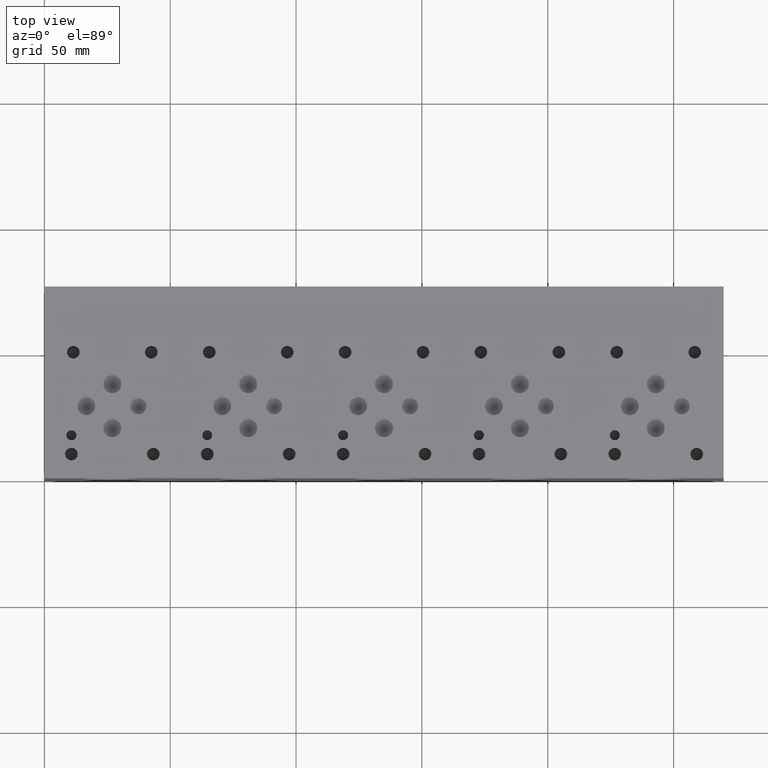
[diagram: clean part render]
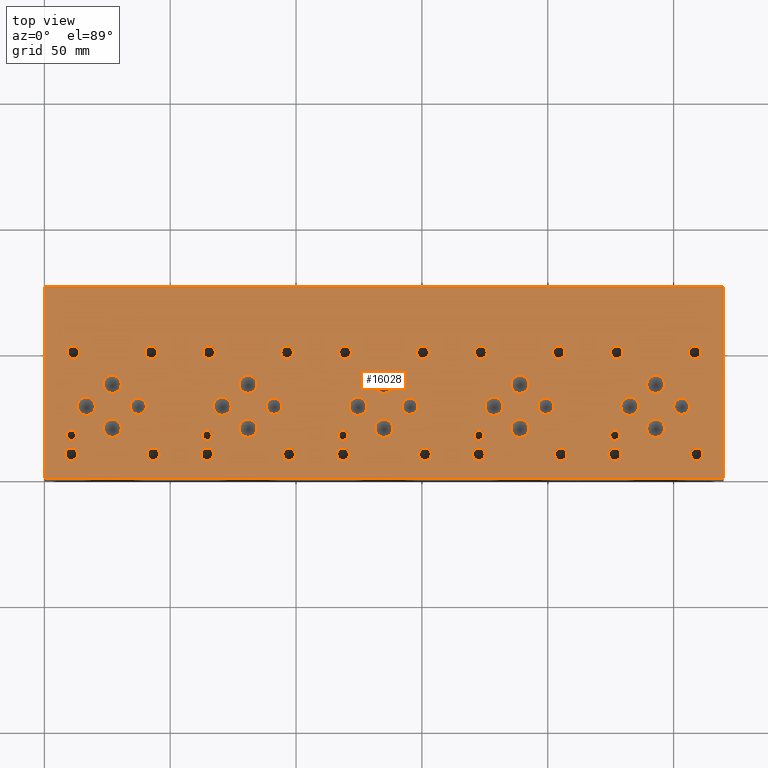
[diagram: same view with one face highlighted and labeled with its STEP entity id]
A machine part, top view. The second image highlights one B-rep face of the part: STEP entity #16028.
In plain terms, the highlighted planar face has unit normal (0, 0, 1).
Its self-contained STEP definition (entity closure, byte-faithful):
#464=CIRCLE('',#16793,1.9812);
#465=CIRCLE('',#16794,1.9812);
#468=CIRCLE('',#16799,1.9812);
#469=CIRCLE('',#16800,1.9812);
#472=CIRCLE('',#16805,1.9812);
#473=CIRCLE('',#16806,1.9812);
#476=CIRCLE('',#16811,1.9812);
#477=CIRCLE('',#16812,1.9812);
#483=CIRCLE('',#16821,2.5019);
#484=CIRCLE('',#16822,2.5019);
#490=CIRCLE('',#16832,2.5019);
#491=CIRCLE('',#16833,2.5019);
#497=CIRCLE('',#16843,2.5019);
#498=CIRCLE('',#16844,2.5019);
#504=CIRCLE('',#16854,2.5019);
#505=CIRCLE('',#16855,2.5019);
#511=CIRCLE('',#16865,2.5019);
#512=CIRCLE('',#16866,2.5019);
#518=CIRCLE('',#16876,2.5019);
#519=CIRCLE('',#16877,2.5019);
#525=CIRCLE('',#16887,2.5019);
#526=CIRCLE('',#16888,2.5019);
#532=CIRCLE('',#16898,2.5019);
#533=CIRCLE('',#16899,2.5019);
#539=CIRCLE('',#16909,2.5019);
#540=CIRCLE('',#16910,2.5019);
#546=CIRCLE('',#16920,2.5019);
#547=CIRCLE('',#16921,2.5019);
#553=CIRCLE('',#16931,2.5019);
#554=CIRCLE('',#16932,2.5019);
#560=CIRCLE('',#16942,2.5019);
#561=CIRCLE('',#16943,2.5019);
#567=CIRCLE('',#16953,2.5019);
#568=CIRCLE('',#16954,2.5019);
#574=CIRCLE('',#16964,2.5019);
#575=CIRCLE('',#16965,2.5019);
#581=CIRCLE('',#16975,2.5019);
#582=CIRCLE('',#16976,2.5019);
#588=CIRCLE('',#16986,2.5019);
#589=CIRCLE('',#16987,2.5019);
#592=CIRCLE('',#16993,3.175);
#593=CIRCLE('',#16994,3.175);
#596=CIRCLE('',#16999,3.175);
#597=CIRCLE('',#17000,3.175);
#600=CIRCLE('',#17005,3.175);
#601=CIRCLE('',#17006,3.175);
#604=CIRCLE('',#17011,3.175);
#605=CIRCLE('',#17012,3.175);
#608=CIRCLE('',#17017,3.175);
#609=CIRCLE('',#17018,3.175);
#612=CIRCLE('',#17023,3.5687);
#613=CIRCLE('',#17024,3.5687);
#616=CIRCLE('',#17029,3.5687);
#617=CIRCLE('',#17030,3.5687);
#620=CIRCLE('',#17035,3.5687);
#621=CIRCLE('',#17036,3.5687);
#624=CIRCLE('',#17041,3.5687);
#625=CIRCLE('',#17042,3.5687);
#628=CIRCLE('',#17047,3.5687);
#629=CIRCLE('',#17048,3.5687);
#632=CIRCLE('',#17053,3.5687);
#633=CIRCLE('',#17054,3.5687);
#636=CIRCLE('',#17059,3.5687);
#637=CIRCLE('',#17060,3.5687);
#640=CIRCLE('',#17065,3.5687);
#641=CIRCLE('',#17066,3.5687);
#644=CIRCLE('',#17071,3.5687);
#645=CIRCLE('',#17072,3.5687);
#648=CIRCLE('',#17077,3.5687);
#649=CIRCLE('',#17078,3.5687);
#652=CIRCLE('',#17083,3.5687);
#653=CIRCLE('',#17084,3.5687);
#656=CIRCLE('',#17089,3.5687);
#657=CIRCLE('',#17090,3.5687);
#660=CIRCLE('',#17095,3.5687);
#661=CIRCLE('',#17096,3.5687);
#664=CIRCLE('',#17101,3.5687);
#665=CIRCLE('',#17102,3.5687);
#668=CIRCLE('',#17107,3.5687);
#669=CIRCLE('',#17108,3.5687);
#672=CIRCLE('',#17113,1.9812);
#673=CIRCLE('',#17114,1.9812);
#679=CIRCLE('',#17123,2.5019);
#680=CIRCLE('',#17124,2.5019);
#686=CIRCLE('',#17134,2.5019);
#687=CIRCLE('',#17135,2.5019);
#693=CIRCLE('',#17145,2.5019);
#694=CIRCLE('',#17146,2.5019);
#700=CIRCLE('',#17156,2.5019);
#701=CIRCLE('',#17157,2.5019);
#831=FACE_BOUND('',#3097,.T.);
#832=FACE_BOUND('',#3098,.T.);
#833=FACE_BOUND('',#3099,.T.);
#834=FACE_BOUND('',#3100,.T.);
#835=FACE_BOUND('',#3101,.T.);
#836=FACE_BOUND('',#3102,.T.);
#837=FACE_BOUND('',#3103,.T.);
#838=FACE_BOUND('',#3104,.T.);
#839=FACE_BOUND('',#3105,.T.);
#840=FACE_BOUND('',#3106,.T.);
#841=FACE_BOUND('',#3107,.T.);
#842=FACE_BOUND('',#3108,.T.);
#843=FACE_BOUND('',#3109,.T.);
#844=FACE_BOUND('',#3110,.T.);
#845=FACE_BOUND('',#3111,.T.);
#846=FACE_BOUND('',#3112,.T.);
#847=FACE_BOUND('',#3113,.T.);
#848=FACE_BOUND('',#3114,.T.);
#849=FACE_BOUND('',#3115,.T.);
#850=FACE_BOUND('',#3116,.T.);
#851=FACE_BOUND('',#3117,.T.);
#852=FACE_BOUND('',#3118,.T.);
#853=FACE_BOUND('',#3119,.T.);
#854=FACE_BOUND('',#3120,.T.);
#855=FACE_BOUND('',#3121,.T.);
#856=FACE_BOUND('',#3122,.T.);
#857=FACE_BOUND('',#3123,.T.);
#858=FACE_BOUND('',#3124,.T.);
#859=FACE_BOUND('',#3125,.T.);
#860=FACE_BOUND('',#3126,.T.);
#861=FACE_BOUND('',#3127,.T.);
#862=FACE_BOUND('',#3128,.T.);
#863=FACE_BOUND('',#3129,.T.);
#864=FACE_BOUND('',#3130,.T.);
#865=FACE_BOUND('',#3131,.T.);
#866=FACE_BOUND('',#3132,.T.);
#867=FACE_BOUND('',#3133,.T.);
#868=FACE_BOUND('',#3134,.T.);
#869=FACE_BOUND('',#3135,.T.);
#870=FACE_BOUND('',#3136,.T.);
#871=FACE_BOUND('',#3137,.T.);
#872=FACE_BOUND('',#3138,.T.);
#873=FACE_BOUND('',#3139,.T.);
#874=FACE_BOUND('',#3140,.T.);
#875=FACE_BOUND('',#3141,.T.);
#1307=PLANE('',#17163);
#2137=FACE_OUTER_BOUND('',#3096,.T.);
#3096=EDGE_LOOP('',(#14371,#14372,#14373,#14374));
#3097=EDGE_LOOP('',(#14375,#14376));
#3098=EDGE_LOOP('',(#14377,#14378));
#3099=EDGE_LOOP('',(#14379,#14380));
#3100=EDGE_LOOP('',(#14381,#14382));
#3101=EDGE_LOOP('',(#14383,#14384));
#3102=EDGE_LOOP('',(#14385,#14386));
#3103=EDGE_LOOP('',(#14387,#14388));
#3104=EDGE_LOOP('',(#14389,#14390));
#3105=EDGE_LOOP('',(#14391,#14392));
#3106=EDGE_LOOP('',(#14393,#14394));
#3107=EDGE_LOOP('',(#14395,#14396));
#3108=EDGE_LOOP('',(#14397,#14398));
#3109=EDGE_LOOP('',(#14399,#14400));
#3110=EDGE_LOOP('',(#14401,#14402));
#3111=EDGE_LOOP('',(#14403,#14404));
#3112=EDGE_LOOP('',(#14405,#14406));
#3113=EDGE_LOOP('',(#14407,#14408));
#3114=EDGE_LOOP('',(#14409,#14410));
#3115=EDGE_LOOP('',(#14411,#14412));
#3116=EDGE_LOOP('',(#14413,#14414));
#3117=EDGE_LOOP('',(#14415,#14416));
#3118=EDGE_LOOP('',(#14417,#14418));
#3119=EDGE_LOOP('',(#14419,#14420));
#3120=EDGE_LOOP('',(#14421,#14422));
#3121=EDGE_LOOP('',(#14423,#14424));
#3122=EDGE_LOOP('',(#14425,#14426));
#3123=EDGE_LOOP('',(#14427,#14428));
#3124=EDGE_LOOP('',(#14429,#14430));
#3125=EDGE_LOOP('',(#14431,#14432));
#3126=EDGE_LOOP('',(#14433,#14434));
#3127=EDGE_LOOP('',(#14435,#14436));
#3128=EDGE_LOOP('',(#14437,#14438));
#3129=EDGE_LOOP('',(#14439,#14440));
#3130=EDGE_LOOP('',(#14441,#14442));
#3131=EDGE_LOOP('',(#14443,#14444));
#3132=EDGE_LOOP('',(#14445,#14446));
#3133=EDGE_LOOP('',(#14447,#14448));
#3134=EDGE_LOOP('',(#14449,#14450));
#3135=EDGE_LOOP('',(#14451,#14452));
#3136=EDGE_LOOP('',(#14453,#14454));
#3137=EDGE_LOOP('',(#14455,#14456));
#3138=EDGE_LOOP('',(#14457,#14458));
#3139=EDGE_LOOP('',(#14459,#14460));
#3140=EDGE_LOOP('',(#14461,#14462));
#3141=EDGE_LOOP('',(#14463,#14464));
#3177=LINE('',#20975,#4534);
#3237=LINE('',#21250,#4594);
#3529=LINE('',#23507,#4886);
#4499=LINE('',#27863,#5856);
#4534=VECTOR('',#17221,10.);
#4594=VECTOR('',#17335,10.);
#4886=VECTOR('',#17793,10.);
#5856=VECTOR('',#20757,10.);
#6273=VERTEX_POINT('',#20972);
#6274=VERTEX_POINT('',#20974);
#6333=VERTEX_POINT('',#21247);
#6334=VERTEX_POINT('',#21249);
#7524=VERTEX_POINT('',#27103);
#7525=VERTEX_POINT('',#27104);
#7529=VERTEX_POINT('',#27116);
#7530=VERTEX_POINT('',#27117);
#7534=VERTEX_POINT('',#27129);
#7535=VERTEX_POINT('',#27130);
#7539=VERTEX_POINT('',#27142);
#7540=VERTEX_POINT('',#27143);
#7547=VERTEX_POINT('',#27162);
#7548=VERTEX_POINT('',#27163);
#7555=VERTEX_POINT('',#27184);
#7556=VERTEX_POINT('',#27185);
#7563=VERTEX_POINT('',#27206);
#7564=VERTEX_POINT('',#27207);
#7571=VERTEX_POINT('',#27228);
#7572=VERTEX_POINT('',#27229);
#7579=VERTEX_POINT('',#27250);
#7580=VERTEX_POINT('',#27251);
#7587=VERTEX_POINT('',#27272);
#7588=VERTEX_POINT('',#27273);
#7595=VERTEX_POINT('',#27294);
#7596=VERTEX_POINT('',#27295);
#7603=VERTEX_POINT('',#27316);
#7604=VERTEX_POINT('',#27317);
#7611=VERTEX_POINT('',#27338);
#7612=VERTEX_POINT('',#27339);
#7619=VERTEX_POINT('',#27360);
#7620=VERTEX_POINT('',#27361);
#7627=VERTEX_POINT('',#27382);
#7628=VERTEX_POINT('',#27383);
#7635=VERTEX_POINT('',#27404);
#7636=VERTEX_POINT('',#27405);
#7643=VERTEX_POINT('',#27426);
#7644=VERTEX_POINT('',#27427);
#7651=VERTEX_POINT('',#27448);
#7652=VERTEX_POINT('',#27449);
#7659=VERTEX_POINT('',#27470);
#7660=VERTEX_POINT('',#27471);
#7667=VERTEX_POINT('',#27492);
#7668=VERTEX_POINT('',#27493);
#7672=VERTEX_POINT('',#27507);
#7673=VERTEX_POINT('',#27508);
#7677=VERTEX_POINT('',#27520);
#7678=VERTEX_POINT('',#27521);
#7682=VERTEX_POINT('',#27533);
#7683=VERTEX_POINT('',#27534);
#7687=VERTEX_POINT('',#27546);
#7688=VERTEX_POINT('',#27547);
#7692=VERTEX_POINT('',#27559);
#7693=VERTEX_POINT('',#27560);
#7697=VERTEX_POINT('',#27572);
#7698=VERTEX_POINT('',#27573);
#7702=VERTEX_POINT('',#27585);
#7703=VERTEX_POINT('',#27586);
#7707=VERTEX_POINT('',#27598);
#7708=VERTEX_POINT('',#27599);
#7712=VERTEX_POINT('',#27611);
#7713=VERTEX_POINT('',#27612);
#7717=VERTEX_POINT('',#27624);
#7718=VERTEX_POINT('',#27625);
#7722=VERTEX_POINT('',#27637);
#7723=VERTEX_POINT('',#27638);
#7727=VERTEX_POINT('',#27650);
#7728=VERTEX_POINT('',#27651);
#7732=VERTEX_POINT('',#27663);
#7733=VERTEX_POINT('',#27664);
#7737=VERTEX_POINT('',#27676);
#7738=VERTEX_POINT('',#27677);
#7742=VERTEX_POINT('',#27689);
#7743=VERTEX_POINT('',#27690);
#7747=VERTEX_POINT('',#27702);
#7748=VERTEX_POINT('',#27703);
#7752=VERTEX_POINT('',#27715);
#7753=VERTEX_POINT('',#27716);
#7757=VERTEX_POINT('',#27728);
#7758=VERTEX_POINT('',#27729);
#7762=VERTEX_POINT('',#27741);
#7763=VERTEX_POINT('',#27742);
#7767=VERTEX_POINT('',#27754);
#7768=VERTEX_POINT('',#27755);
#7772=VERTEX_POINT('',#27767);
#7773=VERTEX_POINT('',#27768);
#7780=VERTEX_POINT('',#27787);
#7781=VERTEX_POINT('',#27788);
#7788=VERTEX_POINT('',#27809);
#7789=VERTEX_POINT('',#27810);
#7796=VERTEX_POINT('',#27831);
#7797=VERTEX_POINT('',#27832);
#7804=VERTEX_POINT('',#27853);
#7805=VERTEX_POINT('',#27854);
#7856=EDGE_CURVE('',#6274,#6273,#3177,.T.);
#7940=EDGE_CURVE('',#6334,#6333,#3237,.T.);
#8434=EDGE_CURVE('',#6333,#6274,#3529,.T.);
#9678=EDGE_CURVE('',#7524,#7525,#464,.T.);
#9679=EDGE_CURVE('',#7525,#7524,#465,.T.);
#9684=EDGE_CURVE('',#7529,#7530,#468,.T.);
#9685=EDGE_CURVE('',#7530,#7529,#469,.T.);
#9690=EDGE_CURVE('',#7534,#7535,#472,.T.);
#9691=EDGE_CURVE('',#7535,#7534,#473,.T.);
#9696=EDGE_CURVE('',#7539,#7540,#476,.T.);
#9697=EDGE_CURVE('',#7540,#7539,#477,.T.);
#9705=EDGE_CURVE('',#7547,#7548,#483,.T.);
#9706=EDGE_CURVE('',#7548,#7547,#484,.T.);
#9715=EDGE_CURVE('',#7555,#7556,#490,.T.);
#9716=EDGE_CURVE('',#7556,#7555,#491,.T.);
#9725=EDGE_CURVE('',#7563,#7564,#497,.T.);
#9726=EDGE_CURVE('',#7564,#7563,#498,.T.);
#9735=EDGE_CURVE('',#7571,#7572,#504,.T.);
#9736=EDGE_CURVE('',#7572,#7571,#505,.T.);
#9745=EDGE_CURVE('',#7579,#7580,#511,.T.);
#9746=EDGE_CURVE('',#7580,#7579,#512,.T.);
#9755=EDGE_CURVE('',#7587,#7588,#518,.T.);
#9756=EDGE_CURVE('',#7588,#7587,#519,.T.);
#9765=EDGE_CURVE('',#7595,#7596,#525,.T.);
#9766=EDGE_CURVE('',#7596,#7595,#526,.T.);
#9775=EDGE_CURVE('',#7603,#7604,#532,.T.);
#9776=EDGE_CURVE('',#7604,#7603,#533,.T.);
#9785=EDGE_CURVE('',#7611,#7612,#539,.T.);
#9786=EDGE_CURVE('',#7612,#7611,#540,.T.);
#9795=EDGE_CURVE('',#7619,#7620,#546,.T.);
#9796=EDGE_CURVE('',#7620,#7619,#547,.T.);
#9805=EDGE_CURVE('',#7627,#7628,#553,.T.);
#9806=EDGE_CURVE('',#7628,#7627,#554,.T.);
#9815=EDGE_CURVE('',#7635,#7636,#560,.T.);
#9816=EDGE_CURVE('',#7636,#7635,#561,.T.);
#9825=EDGE_CURVE('',#7643,#7644,#567,.T.);
#9826=EDGE_CURVE('',#7644,#7643,#568,.T.);
#9835=EDGE_CURVE('',#7651,#7652,#574,.T.);
#9836=EDGE_CURVE('',#7652,#7651,#575,.T.);
#9845=EDGE_CURVE('',#7659,#7660,#581,.T.);
#9846=EDGE_CURVE('',#7660,#7659,#582,.T.);
#9855=EDGE_CURVE('',#7667,#7668,#588,.T.);
#9856=EDGE_CURVE('',#7668,#7667,#589,.T.);
#9862=EDGE_CURVE('',#7672,#7673,#592,.T.);
#9863=EDGE_CURVE('',#7673,#7672,#593,.T.);
#9868=EDGE_CURVE('',#7677,#7678,#596,.T.);
#9869=EDGE_CURVE('',#7678,#7677,#597,.T.);
#9874=EDGE_CURVE('',#7682,#7683,#600,.T.);
#9875=EDGE_CURVE('',#7683,#7682,#601,.T.);
#9880=EDGE_CURVE('',#7687,#7688,#604,.T.);
#9881=EDGE_CURVE('',#7688,#7687,#605,.T.);
#9886=EDGE_CURVE('',#7692,#7693,#608,.T.);
#9887=EDGE_CURVE('',#7693,#7692,#609,.T.);
#9892=EDGE_CURVE('',#7697,#7698,#612,.T.);
#9893=EDGE_CURVE('',#7698,#7697,#613,.T.);
#9898=EDGE_CURVE('',#7702,#7703,#616,.T.);
#9899=EDGE_CURVE('',#7703,#7702,#617,.T.);
#9904=EDGE_CURVE('',#7707,#7708,#620,.T.);
#9905=EDGE_CURVE('',#7708,#7707,#621,.T.);
#9910=EDGE_CURVE('',#7712,#7713,#624,.T.);
#9911=EDGE_CURVE('',#7713,#7712,#625,.T.);
#9916=EDGE_CURVE('',#7717,#7718,#628,.T.);
#9917=EDGE_CURVE('',#7718,#7717,#629,.T.);
#9922=EDGE_CURVE('',#7722,#7723,#632,.T.);
#9923=EDGE_CURVE('',#7723,#7722,#633,.T.);
#9928=EDGE_CURVE('',#7727,#7728,#636,.T.);
#9929=EDGE_CURVE('',#7728,#7727,#637,.T.);
#9934=EDGE_CURVE('',#7732,#7733,#640,.T.);
#9935=EDGE_CURVE('',#7733,#7732,#641,.T.);
#9940=EDGE_CURVE('',#7737,#7738,#644,.T.);
#9941=EDGE_CURVE('',#7738,#7737,#645,.T.);
#9946=EDGE_CURVE('',#7742,#7743,#648,.T.);
#9947=EDGE_CURVE('',#7743,#7742,#649,.T.);
#9952=EDGE_CURVE('',#7747,#7748,#652,.T.);
#9953=EDGE_CURVE('',#7748,#7747,#653,.T.);
#9958=EDGE_CURVE('',#7752,#7753,#656,.T.);
#9959=EDGE_CURVE('',#7753,#7752,#657,.T.);
#9964=EDGE_CURVE('',#7757,#7758,#660,.T.);
#9965=EDGE_CURVE('',#7758,#7757,#661,.T.);
#9970=EDGE_CURVE('',#7762,#7763,#664,.T.);
#9971=EDGE_CURVE('',#7763,#7762,#665,.T.);
#9976=EDGE_CURVE('',#7767,#7768,#668,.T.);
#9977=EDGE_CURVE('',#7768,#7767,#669,.T.);
#9982=EDGE_CURVE('',#7772,#7773,#672,.T.);
#9983=EDGE_CURVE('',#7773,#7772,#673,.T.);
#9991=EDGE_CURVE('',#7780,#7781,#679,.T.);
#9992=EDGE_CURVE('',#7781,#7780,#680,.T.);
#10001=EDGE_CURVE('',#7788,#7789,#686,.T.);
#10002=EDGE_CURVE('',#7789,#7788,#687,.T.);
#10011=EDGE_CURVE('',#7796,#7797,#693,.T.);
#10012=EDGE_CURVE('',#7797,#7796,#694,.T.);
#10021=EDGE_CURVE('',#7804,#7805,#700,.T.);
#10022=EDGE_CURVE('',#7805,#7804,#701,.T.);
#10026=EDGE_CURVE('',#6273,#6334,#4499,.T.);
#14371=ORIENTED_EDGE('',*,*,#8434,.T.);
#14372=ORIENTED_EDGE('',*,*,#7856,.T.);
#14373=ORIENTED_EDGE('',*,*,#10026,.T.);
#14374=ORIENTED_EDGE('',*,*,#7940,.T.);
#14375=ORIENTED_EDGE('',*,*,#9678,.T.);
#14376=ORIENTED_EDGE('',*,*,#9679,.T.);
#14377=ORIENTED_EDGE('',*,*,#9684,.T.);
#14378=ORIENTED_EDGE('',*,*,#9685,.T.);
#14379=ORIENTED_EDGE('',*,*,#9690,.T.);
#14380=ORIENTED_EDGE('',*,*,#9691,.T.);
#14381=ORIENTED_EDGE('',*,*,#9696,.T.);
#14382=ORIENTED_EDGE('',*,*,#9697,.T.);
#14383=ORIENTED_EDGE('',*,*,#9705,.T.);
#14384=ORIENTED_EDGE('',*,*,#9706,.T.);
#14385=ORIENTED_EDGE('',*,*,#9715,.T.);
#14386=ORIENTED_EDGE('',*,*,#9716,.T.);
#14387=ORIENTED_EDGE('',*,*,#9725,.T.);
#14388=ORIENTED_EDGE('',*,*,#9726,.T.);
#14389=ORIENTED_EDGE('',*,*,#9735,.T.);
#14390=ORIENTED_EDGE('',*,*,#9736,.T.);
#14391=ORIENTED_EDGE('',*,*,#9745,.T.);
#14392=ORIENTED_EDGE('',*,*,#9746,.T.);
#14393=ORIENTED_EDGE('',*,*,#9755,.T.);
#14394=ORIENTED_EDGE('',*,*,#9756,.T.);
#14395=ORIENTED_EDGE('',*,*,#9765,.T.);
#14396=ORIENTED_EDGE('',*,*,#9766,.T.);
#14397=ORIENTED_EDGE('',*,*,#9775,.T.);
#14398=ORIENTED_EDGE('',*,*,#9776,.T.);
#14399=ORIENTED_EDGE('',*,*,#9785,.T.);
#14400=ORIENTED_EDGE('',*,*,#9786,.T.);
#14401=ORIENTED_EDGE('',*,*,#9795,.T.);
#14402=ORIENTED_EDGE('',*,*,#9796,.T.);
#14403=ORIENTED_EDGE('',*,*,#9805,.T.);
#14404=ORIENTED_EDGE('',*,*,#9806,.T.);
#14405=ORIENTED_EDGE('',*,*,#9815,.T.);
#14406=ORIENTED_EDGE('',*,*,#9816,.T.);
#14407=ORIENTED_EDGE('',*,*,#9825,.T.);
#14408=ORIENTED_EDGE('',*,*,#9826,.T.);
#14409=ORIENTED_EDGE('',*,*,#9835,.T.);
#14410=ORIENTED_EDGE('',*,*,#9836,.T.);
#14411=ORIENTED_EDGE('',*,*,#9845,.T.);
#14412=ORIENTED_EDGE('',*,*,#9846,.T.);
#14413=ORIENTED_EDGE('',*,*,#9855,.T.);
#14414=ORIENTED_EDGE('',*,*,#9856,.T.);
#14415=ORIENTED_EDGE('',*,*,#9862,.T.);
#14416=ORIENTED_EDGE('',*,*,#9863,.T.);
#14417=ORIENTED_EDGE('',*,*,#9868,.T.);
#14418=ORIENTED_EDGE('',*,*,#9869,.T.);
#14419=ORIENTED_EDGE('',*,*,#9874,.T.);
#14420=ORIENTED_EDGE('',*,*,#9875,.T.);
#14421=ORIENTED_EDGE('',*,*,#9880,.T.);
#14422=ORIENTED_EDGE('',*,*,#9881,.T.);
#14423=ORIENTED_EDGE('',*,*,#9886,.T.);
#14424=ORIENTED_EDGE('',*,*,#9887,.T.);
#14425=ORIENTED_EDGE('',*,*,#9892,.T.);
#14426=ORIENTED_EDGE('',*,*,#9893,.T.);
#14427=ORIENTED_EDGE('',*,*,#9898,.T.);
#14428=ORIENTED_EDGE('',*,*,#9899,.T.);
#14429=ORIENTED_EDGE('',*,*,#9904,.T.);
#14430=ORIENTED_EDGE('',*,*,#9905,.T.);
#14431=ORIENTED_EDGE('',*,*,#9910,.T.);
#14432=ORIENTED_EDGE('',*,*,#9911,.T.);
#14433=ORIENTED_EDGE('',*,*,#9916,.T.);
#14434=ORIENTED_EDGE('',*,*,#9917,.T.);
#14435=ORIENTED_EDGE('',*,*,#9922,.T.);
#14436=ORIENTED_EDGE('',*,*,#9923,.T.);
#14437=ORIENTED_EDGE('',*,*,#9928,.T.);
#14438=ORIENTED_EDGE('',*,*,#9929,.T.);
#14439=ORIENTED_EDGE('',*,*,#9934,.T.);
#14440=ORIENTED_EDGE('',*,*,#9935,.T.);
#14441=ORIENTED_EDGE('',*,*,#9940,.T.);
#14442=ORIENTED_EDGE('',*,*,#9941,.T.);
#14443=ORIENTED_EDGE('',*,*,#9946,.T.);
#14444=ORIENTED_EDGE('',*,*,#9947,.T.);
#14445=ORIENTED_EDGE('',*,*,#9952,.T.);
#14446=ORIENTED_EDGE('',*,*,#9953,.T.);
#14447=ORIENTED_EDGE('',*,*,#9958,.T.);
#14448=ORIENTED_EDGE('',*,*,#9959,.T.);
#14449=ORIENTED_EDGE('',*,*,#9964,.T.);
#14450=ORIENTED_EDGE('',*,*,#9965,.T.);
#14451=ORIENTED_EDGE('',*,*,#9970,.T.);
#14452=ORIENTED_EDGE('',*,*,#9971,.T.);
#14453=ORIENTED_EDGE('',*,*,#9976,.T.);
#14454=ORIENTED_EDGE('',*,*,#9977,.T.);
#14455=ORIENTED_EDGE('',*,*,#9982,.T.);
#14456=ORIENTED_EDGE('',*,*,#9983,.T.);
#14457=ORIENTED_EDGE('',*,*,#9991,.T.);
#14458=ORIENTED_EDGE('',*,*,#9992,.T.);
#14459=ORIENTED_EDGE('',*,*,#10001,.T.);
#14460=ORIENTED_EDGE('',*,*,#10002,.T.);
#14461=ORIENTED_EDGE('',*,*,#10011,.T.);
#14462=ORIENTED_EDGE('',*,*,#10012,.T.);
#14463=ORIENTED_EDGE('',*,*,#10021,.T.);
#14464=ORIENTED_EDGE('',*,*,#10022,.T.);
#16028=ADVANCED_FACE('',(#2137,#831,#832,#833,#834,#835,#836,#837,#838,
#839,#840,#841,#842,#843,#844,#845,#846,#847,#848,#849,#850,#851,#852,#853,
#854,#855,#856,#857,#858,#859,#860,#861,#862,#863,#864,#865,#866,#867,#868,
#869,#870,#871,#872,#873,#874,#875),#1307,.T.);
#16793=AXIS2_PLACEMENT_3D('',#27105,#19911,#19912);
#16794=AXIS2_PLACEMENT_3D('',#27106,#19913,#19914);
#16799=AXIS2_PLACEMENT_3D('',#27118,#19925,#19926);
#16800=AXIS2_PLACEMENT_3D('',#27119,#19927,#19928);
#16805=AXIS2_PLACEMENT_3D('',#27131,#19939,#19940);
#16806=AXIS2_PLACEMENT_3D('',#27132,#19941,#19942);
#16811=AXIS2_PLACEMENT_3D('',#27144,#19953,#19954);
#16812=AXIS2_PLACEMENT_3D('',#27145,#19955,#19956);
#16821=AXIS2_PLACEMENT_3D('',#27164,#19975,#19976);
#16822=AXIS2_PLACEMENT_3D('',#27165,#19977,#19978);
#16832=AXIS2_PLACEMENT_3D('',#27186,#20000,#20001);
#16833=AXIS2_PLACEMENT_3D('',#27187,#20002,#20003);
#16843=AXIS2_PLACEMENT_3D('',#27208,#20025,#20026);
#16844=AXIS2_PLACEMENT_3D('',#27209,#20027,#20028);
#16854=AXIS2_PLACEMENT_3D('',#27230,#20050,#20051);
#16855=AXIS2_PLACEMENT_3D('',#27231,#20052,#20053);
#16865=AXIS2_PLACEMENT_3D('',#27252,#20075,#20076);
#16866=AXIS2_PLACEMENT_3D('',#27253,#20077,#20078);
#16876=AXIS2_PLACEMENT_3D('',#27274,#20100,#20101);
#16877=AXIS2_PLACEMENT_3D('',#27275,#20102,#20103);
#16887=AXIS2_PLACEMENT_3D('',#27296,#20125,#20126);
#16888=AXIS2_PLACEMENT_3D('',#27297,#20127,#20128);
#16898=AXIS2_PLACEMENT_3D('',#27318,#20150,#20151);
#16899=AXIS2_PLACEMENT_3D('',#27319,#20152,#20153);
#16909=AXIS2_PLACEMENT_3D('',#27340,#20175,#20176);
#16910=AXIS2_PLACEMENT_3D('',#27341,#20177,#20178);
#16920=AXIS2_PLACEMENT_3D('',#27362,#20200,#20201);
#16921=AXIS2_PLACEMENT_3D('',#27363,#20202,#20203);
#16931=AXIS2_PLACEMENT_3D('',#27384,#20225,#20226);
#16932=AXIS2_PLACEMENT_3D('',#27385,#20227,#20228);
#16942=AXIS2_PLACEMENT_3D('',#27406,#20250,#20251);
#16943=AXIS2_PLACEMENT_3D('',#27407,#20252,#20253);
#16953=AXIS2_PLACEMENT_3D('',#27428,#20275,#20276);
#16954=AXIS2_PLACEMENT_3D('',#27429,#20277,#20278);
#16964=AXIS2_PLACEMENT_3D('',#27450,#20300,#20301);
#16965=AXIS2_PLACEMENT_3D('',#27451,#20302,#20303);
#16975=AXIS2_PLACEMENT_3D('',#27472,#20325,#20326);
#16976=AXIS2_PLACEMENT_3D('',#27473,#20327,#20328);
#16986=AXIS2_PLACEMENT_3D('',#27494,#20350,#20351);
#16987=AXIS2_PLACEMENT_3D('',#27495,#20352,#20353);
#16993=AXIS2_PLACEMENT_3D('',#27509,#20367,#20368);
#16994=AXIS2_PLACEMENT_3D('',#27510,#20369,#20370);
#16999=AXIS2_PLACEMENT_3D('',#27522,#20381,#20382);
#17000=AXIS2_PLACEMENT_3D('',#27523,#20383,#20384);
#17005=AXIS2_PLACEMENT_3D('',#27535,#20395,#20396);
#17006=AXIS2_PLACEMENT_3D('',#27536,#20397,#20398);
#17011=AXIS2_PLACEMENT_3D('',#27548,#20409,#20410);
#17012=AXIS2_PLACEMENT_3D('',#27549,#20411,#20412);
#17017=AXIS2_PLACEMENT_3D('',#27561,#20423,#20424);
#17018=AXIS2_PLACEMENT_3D('',#27562,#20425,#20426);
#17023=AXIS2_PLACEMENT_3D('',#27574,#20437,#20438);
#17024=AXIS2_PLACEMENT_3D('',#27575,#20439,#20440);
#17029=AXIS2_PLACEMENT_3D('',#27587,#20451,#20452);
#17030=AXIS2_PLACEMENT_3D('',#27588,#20453,#20454);
#17035=AXIS2_PLACEMENT_3D('',#27600,#20465,#20466);
#17036=AXIS2_PLACEMENT_3D('',#27601,#20467,#20468);
#17041=AXIS2_PLACEMENT_3D('',#27613,#20479,#20480);
#17042=AXIS2_PLACEMENT_3D('',#27614,#20481,#20482);
#17047=AXIS2_PLACEMENT_3D('',#27626,#20493,#20494);
#17048=AXIS2_PLACEMENT_3D('',#27627,#20495,#20496);
#17053=AXIS2_PLACEMENT_3D('',#27639,#20507,#20508);
#17054=AXIS2_PLACEMENT_3D('',#27640,#20509,#20510);
#17059=AXIS2_PLACEMENT_3D('',#27652,#20521,#20522);
#17060=AXIS2_PLACEMENT_3D('',#27653,#20523,#20524);
#17065=AXIS2_PLACEMENT_3D('',#27665,#20535,#20536);
#17066=AXIS2_PLACEMENT_3D('',#27666,#20537,#20538);
#17071=AXIS2_PLACEMENT_3D('',#27678,#20549,#20550);
#17072=AXIS2_PLACEMENT_3D('',#27679,#20551,#20552);
#17077=AXIS2_PLACEMENT_3D('',#27691,#20563,#20564);
#17078=AXIS2_PLACEMENT_3D('',#27692,#20565,#20566);
#17083=AXIS2_PLACEMENT_3D('',#27704,#20577,#20578);
#17084=AXIS2_PLACEMENT_3D('',#27705,#20579,#20580);
#17089=AXIS2_PLACEMENT_3D('',#27717,#20591,#20592);
#17090=AXIS2_PLACEMENT_3D('',#27718,#20593,#20594);
#17095=AXIS2_PLACEMENT_3D('',#27730,#20605,#20606);
#17096=AXIS2_PLACEMENT_3D('',#27731,#20607,#20608);
#17101=AXIS2_PLACEMENT_3D('',#27743,#20619,#20620);
#17102=AXIS2_PLACEMENT_3D('',#27744,#20621,#20622);
#17107=AXIS2_PLACEMENT_3D('',#27756,#20633,#20634);
#17108=AXIS2_PLACEMENT_3D('',#27757,#20635,#20636);
#17113=AXIS2_PLACEMENT_3D('',#27769,#20647,#20648);
#17114=AXIS2_PLACEMENT_3D('',#27770,#20649,#20650);
#17123=AXIS2_PLACEMENT_3D('',#27789,#20669,#20670);
#17124=AXIS2_PLACEMENT_3D('',#27790,#20671,#20672);
#17134=AXIS2_PLACEMENT_3D('',#27811,#20694,#20695);
#17135=AXIS2_PLACEMENT_3D('',#27812,#20696,#20697);
#17145=AXIS2_PLACEMENT_3D('',#27833,#20719,#20720);
#17146=AXIS2_PLACEMENT_3D('',#27834,#20721,#20722);
#17156=AXIS2_PLACEMENT_3D('',#27855,#20744,#20745);
#17157=AXIS2_PLACEMENT_3D('',#27856,#20746,#20747);
#17163=AXIS2_PLACEMENT_3D('',#27866,#20762,#20763);
#17221=DIRECTION('',(0.,1.,0.));
#17335=DIRECTION('',(0.,-1.,0.));
#17793=DIRECTION('',(1.,0.,0.));
#19911=DIRECTION('center_axis',(0.,0.,-1.));
#19912=DIRECTION('ref_axis',(1.,0.,0.));
#19913=DIRECTION('center_axis',(0.,0.,-1.));
#19914=DIRECTION('ref_axis',(1.,0.,0.));
#19925=DIRECTION('center_axis',(0.,0.,-1.));
#19926=DIRECTION('ref_axis',(1.,0.,0.));
#19927=DIRECTION('center_axis',(0.,0.,-1.));
#19928=DIRECTION('ref_axis',(1.,0.,0.));
#19939=DIRECTION('center_axis',(0.,0.,-1.));
#19940=DIRECTION('ref_axis',(1.,0.,0.));
#19941=DIRECTION('center_axis',(0.,0.,-1.));
#19942=DIRECTION('ref_axis',(1.,0.,0.));
#19953=DIRECTION('center_axis',(0.,0.,-1.));
#19954=DIRECTION('ref_axis',(1.,0.,0.));
#19955=DIRECTION('center_axis',(0.,0.,-1.));
#19956=DIRECTION('ref_axis',(1.,0.,0.));
#19975=DIRECTION('center_axis',(0.,0.,-1.));
#19976=DIRECTION('ref_axis',(1.,0.,0.));
#19977=DIRECTION('center_axis',(0.,0.,-1.));
#19978=DIRECTION('ref_axis',(1.,0.,0.));
#20000=DIRECTION('center_axis',(0.,0.,-1.));
#20001=DIRECTION('ref_axis',(1.,0.,0.));
#20002=DIRECTION('center_axis',(0.,0.,-1.));
#20003=DIRECTION('ref_axis',(1.,0.,0.));
#20025=DIRECTION('center_axis',(0.,0.,-1.));
#20026=DIRECTION('ref_axis',(1.,0.,0.));
#20027=DIRECTION('center_axis',(0.,0.,-1.));
#20028=DIRECTION('ref_axis',(1.,0.,0.));
#20050=DIRECTION('center_axis',(0.,0.,-1.));
#20051=DIRECTION('ref_axis',(1.,0.,0.));
#20052=DIRECTION('center_axis',(0.,0.,-1.));
#20053=DIRECTION('ref_axis',(1.,0.,0.));
#20075=DIRECTION('center_axis',(0.,0.,-1.));
#20076=DIRECTION('ref_axis',(1.,0.,0.));
#20077=DIRECTION('center_axis',(0.,0.,-1.));
#20078=DIRECTION('ref_axis',(1.,0.,0.));
#20100=DIRECTION('center_axis',(0.,0.,-1.));
#20101=DIRECTION('ref_axis',(1.,0.,0.));
#20102=DIRECTION('center_axis',(0.,0.,-1.));
#20103=DIRECTION('ref_axis',(1.,0.,0.));
#20125=DIRECTION('center_axis',(0.,0.,-1.));
#20126=DIRECTION('ref_axis',(1.,0.,0.));
#20127=DIRECTION('center_axis',(0.,0.,-1.));
#20128=DIRECTION('ref_axis',(1.,0.,0.));
#20150=DIRECTION('center_axis',(0.,0.,-1.));
#20151=DIRECTION('ref_axis',(1.,0.,0.));
#20152=DIRECTION('center_axis',(0.,0.,-1.));
#20153=DIRECTION('ref_axis',(1.,0.,0.));
#20175=DIRECTION('center_axis',(0.,0.,-1.));
#20176=DIRECTION('ref_axis',(1.,0.,0.));
#20177=DIRECTION('center_axis',(0.,0.,-1.));
#20178=DIRECTION('ref_axis',(1.,0.,0.));
#20200=DIRECTION('center_axis',(0.,0.,-1.));
#20201=DIRECTION('ref_axis',(1.,0.,0.));
#20202=DIRECTION('center_axis',(0.,0.,-1.));
#20203=DIRECTION('ref_axis',(1.,0.,0.));
#20225=DIRECTION('center_axis',(0.,0.,-1.));
#20226=DIRECTION('ref_axis',(1.,0.,0.));
#20227=DIRECTION('center_axis',(0.,0.,-1.));
#20228=DIRECTION('ref_axis',(1.,0.,0.));
#20250=DIRECTION('center_axis',(0.,0.,-1.));
#20251=DIRECTION('ref_axis',(1.,0.,0.));
#20252=DIRECTION('center_axis',(0.,0.,-1.));
#20253=DIRECTION('ref_axis',(1.,0.,0.));
#20275=DIRECTION('center_axis',(0.,0.,-1.));
#20276=DIRECTION('ref_axis',(1.,0.,0.));
#20277=DIRECTION('center_axis',(0.,0.,-1.));
#20278=DIRECTION('ref_axis',(1.,0.,0.));
#20300=DIRECTION('center_axis',(0.,0.,-1.));
#20301=DIRECTION('ref_axis',(1.,0.,0.));
#20302=DIRECTION('center_axis',(0.,0.,-1.));
#20303=DIRECTION('ref_axis',(1.,0.,0.));
#20325=DIRECTION('center_axis',(0.,0.,-1.));
#20326=DIRECTION('ref_axis',(1.,0.,0.));
#20327=DIRECTION('center_axis',(0.,0.,-1.));
#20328=DIRECTION('ref_axis',(1.,0.,0.));
#20350=DIRECTION('center_axis',(0.,0.,-1.));
#20351=DIRECTION('ref_axis',(1.,0.,0.));
#20352=DIRECTION('center_axis',(0.,0.,-1.));
#20353=DIRECTION('ref_axis',(1.,0.,0.));
#20367=DIRECTION('center_axis',(0.,0.,-1.));
#20368=DIRECTION('ref_axis',(1.,0.,0.));
#20369=DIRECTION('center_axis',(0.,0.,-1.));
#20370=DIRECTION('ref_axis',(1.,0.,0.));
#20381=DIRECTION('center_axis',(0.,0.,-1.));
#20382=DIRECTION('ref_axis',(1.,0.,0.));
#20383=DIRECTION('center_axis',(0.,0.,-1.));
#20384=DIRECTION('ref_axis',(1.,0.,0.));
#20395=DIRECTION('center_axis',(0.,0.,-1.));
#20396=DIRECTION('ref_axis',(1.,0.,0.));
#20397=DIRECTION('center_axis',(0.,0.,-1.));
#20398=DIRECTION('ref_axis',(1.,0.,0.));
#20409=DIRECTION('center_axis',(0.,0.,-1.));
#20410=DIRECTION('ref_axis',(1.,0.,0.));
#20411=DIRECTION('center_axis',(0.,0.,-1.));
#20412=DIRECTION('ref_axis',(1.,0.,0.));
#20423=DIRECTION('center_axis',(0.,0.,-1.));
#20424=DIRECTION('ref_axis',(1.,0.,0.));
#20425=DIRECTION('center_axis',(0.,0.,-1.));
#20426=DIRECTION('ref_axis',(1.,0.,0.));
#20437=DIRECTION('center_axis',(0.,0.,-1.));
#20438=DIRECTION('ref_axis',(1.,0.,0.));
#20439=DIRECTION('center_axis',(0.,0.,-1.));
#20440=DIRECTION('ref_axis',(1.,0.,0.));
#20451=DIRECTION('center_axis',(0.,0.,-1.));
#20452=DIRECTION('ref_axis',(1.,0.,0.));
#20453=DIRECTION('center_axis',(0.,0.,-1.));
#20454=DIRECTION('ref_axis',(1.,0.,0.));
#20465=DIRECTION('center_axis',(0.,0.,-1.));
#20466=DIRECTION('ref_axis',(1.,0.,0.));
#20467=DIRECTION('center_axis',(0.,0.,-1.));
#20468=DIRECTION('ref_axis',(1.,0.,0.));
#20479=DIRECTION('center_axis',(0.,0.,-1.));
#20480=DIRECTION('ref_axis',(1.,0.,0.));
#20481=DIRECTION('center_axis',(0.,0.,-1.));
#20482=DIRECTION('ref_axis',(1.,0.,0.));
#20493=DIRECTION('center_axis',(0.,0.,-1.));
#20494=DIRECTION('ref_axis',(1.,0.,0.));
#20495=DIRECTION('center_axis',(0.,0.,-1.));
#20496=DIRECTION('ref_axis',(1.,0.,0.));
#20507=DIRECTION('center_axis',(0.,0.,-1.));
#20508=DIRECTION('ref_axis',(1.,0.,0.));
#20509=DIRECTION('center_axis',(0.,0.,-1.));
#20510=DIRECTION('ref_axis',(1.,0.,0.));
#20521=DIRECTION('center_axis',(0.,0.,-1.));
#20522=DIRECTION('ref_axis',(1.,0.,0.));
#20523=DIRECTION('center_axis',(0.,0.,-1.));
#20524=DIRECTION('ref_axis',(1.,0.,0.));
#20535=DIRECTION('center_axis',(0.,0.,-1.));
#20536=DIRECTION('ref_axis',(1.,0.,0.));
#20537=DIRECTION('center_axis',(0.,0.,-1.));
#20538=DIRECTION('ref_axis',(1.,0.,0.));
#20549=DIRECTION('center_axis',(0.,0.,-1.));
#20550=DIRECTION('ref_axis',(1.,0.,0.));
#20551=DIRECTION('center_axis',(0.,0.,-1.));
#20552=DIRECTION('ref_axis',(1.,0.,0.));
#20563=DIRECTION('center_axis',(0.,0.,-1.));
#20564=DIRECTION('ref_axis',(1.,0.,0.));
#20565=DIRECTION('center_axis',(0.,0.,-1.));
#20566=DIRECTION('ref_axis',(1.,0.,0.));
#20577=DIRECTION('center_axis',(0.,0.,-1.));
#20578=DIRECTION('ref_axis',(1.,0.,0.));
#20579=DIRECTION('center_axis',(0.,0.,-1.));
#20580=DIRECTION('ref_axis',(1.,0.,0.));
#20591=DIRECTION('center_axis',(0.,0.,-1.));
#20592=DIRECTION('ref_axis',(1.,0.,0.));
#20593=DIRECTION('center_axis',(0.,0.,-1.));
#20594=DIRECTION('ref_axis',(1.,0.,0.));
#20605=DIRECTION('center_axis',(0.,0.,-1.));
#20606=DIRECTION('ref_axis',(1.,0.,0.));
#20607=DIRECTION('center_axis',(0.,0.,-1.));
#20608=DIRECTION('ref_axis',(1.,0.,0.));
#20619=DIRECTION('center_axis',(0.,0.,-1.));
#20620=DIRECTION('ref_axis',(1.,0.,0.));
#20621=DIRECTION('center_axis',(0.,0.,-1.));
#20622=DIRECTION('ref_axis',(1.,0.,0.));
#20633=DIRECTION('center_axis',(0.,0.,-1.));
#20634=DIRECTION('ref_axis',(1.,0.,0.));
#20635=DIRECTION('center_axis',(0.,0.,-1.));
#20636=DIRECTION('ref_axis',(1.,0.,0.));
#20647=DIRECTION('center_axis',(0.,0.,-1.));
#20648=DIRECTION('ref_axis',(1.,0.,0.));
#20649=DIRECTION('center_axis',(0.,0.,-1.));
#20650=DIRECTION('ref_axis',(1.,0.,0.));
#20669=DIRECTION('center_axis',(0.,0.,-1.));
#20670=DIRECTION('ref_axis',(1.,0.,0.));
#20671=DIRECTION('center_axis',(0.,0.,-1.));
#20672=DIRECTION('ref_axis',(1.,0.,0.));
#20694=DIRECTION('center_axis',(0.,0.,-1.));
#20695=DIRECTION('ref_axis',(1.,0.,0.));
#20696=DIRECTION('center_axis',(0.,0.,-1.));
#20697=DIRECTION('ref_axis',(1.,0.,0.));
#20719=DIRECTION('center_axis',(0.,0.,-1.));
#20720=DIRECTION('ref_axis',(1.,0.,0.));
#20721=DIRECTION('center_axis',(0.,0.,-1.));
#20722=DIRECTION('ref_axis',(1.,0.,0.));
#20744=DIRECTION('center_axis',(0.,0.,-1.));
#20745=DIRECTION('ref_axis',(1.,0.,0.));
#20746=DIRECTION('center_axis',(0.,0.,-1.));
#20747=DIRECTION('ref_axis',(1.,0.,0.));
#20757=DIRECTION('',(-1.,0.,0.));
#20762=DIRECTION('center_axis',(0.,0.,1.));
#20763=DIRECTION('ref_axis',(1.,0.,0.));
#20972=CARTESIAN_POINT('',(269.875,76.2,76.2));
#20974=CARTESIAN_POINT('',(269.875,0.,76.2));
#20975=CARTESIAN_POINT('',(269.875,0.,76.2));
#21247=CARTESIAN_POINT('',(0.,0.,76.2));
#21249=CARTESIAN_POINT('',(0.,76.2,76.2));
#21250=CARTESIAN_POINT('',(0.,76.2,76.2));
#23507=CARTESIAN_POINT('',(0.,0.,76.2));
#27103=CARTESIAN_POINT('',(174.625,17.018,76.2));
#27104=CARTESIAN_POINT('',(170.6626,17.018,76.2));
#27105=CARTESIAN_POINT('Origin',(172.6438,17.018,76.2));
#27106=CARTESIAN_POINT('Origin',(172.6438,17.018,76.2));
#27116=CARTESIAN_POINT('',(66.675,17.018,76.2));
#27117=CARTESIAN_POINT('',(62.7126,17.018,76.2));
#27118=CARTESIAN_POINT('Origin',(64.6938,17.018,76.2));
#27119=CARTESIAN_POINT('Origin',(64.6938,17.018,76.2));
#27129=CARTESIAN_POINT('',(120.65,17.018,76.2));
#27130=CARTESIAN_POINT('',(116.6876,17.018,76.2));
#27131=CARTESIAN_POINT('Origin',(118.6688,17.018,76.2));
#27132=CARTESIAN_POINT('Origin',(118.6688,17.018,76.2));
#27142=CARTESIAN_POINT('',(228.6,17.018,76.2));
#27143=CARTESIAN_POINT('',(224.6376,17.018,76.2));
#27144=CARTESIAN_POINT('Origin',(226.6188,17.018,76.2));
#27145=CARTESIAN_POINT('Origin',(226.6188,17.018,76.2));
#27162=CARTESIAN_POINT('',(261.6581,9.525,76.2));
#27163=CARTESIAN_POINT('',(256.6543,9.525,76.2));
#27164=CARTESIAN_POINT('Origin',(259.1562,9.525,76.2));
#27165=CARTESIAN_POINT('Origin',(259.1562,9.525,76.2));
#27184=CARTESIAN_POINT('',(229.9081,50.0126,76.2));
#27185=CARTESIAN_POINT('',(224.9043,50.0126,76.2));
#27186=CARTESIAN_POINT('Origin',(227.4062,50.0126,76.2));
#27187=CARTESIAN_POINT('Origin',(227.4062,50.0126,76.2));
#27206=CARTESIAN_POINT('',(207.6831,9.525,76.2));
#27207=CARTESIAN_POINT('',(202.6793,9.525,76.2));
#27208=CARTESIAN_POINT('Origin',(205.1812,9.525,76.2));
#27209=CARTESIAN_POINT('Origin',(205.1812,9.525,76.2));
#27228=CARTESIAN_POINT('',(175.9331,50.0126,76.2));
#27229=CARTESIAN_POINT('',(170.9293,50.0126,76.2));
#27230=CARTESIAN_POINT('Origin',(173.4312,50.0126,76.2));
#27231=CARTESIAN_POINT('Origin',(173.4312,50.0126,76.2));
#27250=CARTESIAN_POINT('',(153.7081,9.525,76.2));
#27251=CARTESIAN_POINT('',(148.7043,9.525,76.2));
#27252=CARTESIAN_POINT('Origin',(151.2062,9.525,76.2));
#27253=CARTESIAN_POINT('Origin',(151.2062,9.525,76.2));
#27272=CARTESIAN_POINT('',(121.9581,50.0126,76.2));
#27273=CARTESIAN_POINT('',(116.9543,50.0126,76.2));
#27274=CARTESIAN_POINT('Origin',(119.4562,50.0126,76.2));
#27275=CARTESIAN_POINT('Origin',(119.4562,50.0126,76.2));
#27294=CARTESIAN_POINT('',(99.7331,9.525,76.2));
#27295=CARTESIAN_POINT('',(94.7293,9.525,76.2));
#27296=CARTESIAN_POINT('Origin',(97.2312,9.525,76.2));
#27297=CARTESIAN_POINT('Origin',(97.2312,9.525,76.2));
#27316=CARTESIAN_POINT('',(67.9831,50.0126,76.2));
#27317=CARTESIAN_POINT('',(62.9793,50.0126,76.2));
#27318=CARTESIAN_POINT('Origin',(65.4812,50.0126,76.2));
#27319=CARTESIAN_POINT('Origin',(65.4812,50.0126,76.2));
#27338=CARTESIAN_POINT('',(98.9457,50.0126,76.2));
#27339=CARTESIAN_POINT('',(93.9419,50.0126,76.2));
#27340=CARTESIAN_POINT('Origin',(96.4438,50.0126,76.2));
#27341=CARTESIAN_POINT('Origin',(96.4438,50.0126,76.2));
#27360=CARTESIAN_POINT('',(67.1957,9.525,76.2));
#27361=CARTESIAN_POINT('',(62.1919,9.525,76.2));
#27362=CARTESIAN_POINT('Origin',(64.6938,9.525,76.2));
#27363=CARTESIAN_POINT('Origin',(64.6938,9.525,76.2));
#27382=CARTESIAN_POINT('',(152.9207,50.0126,76.2));
#27383=CARTESIAN_POINT('',(147.9169,50.0126,76.2));
#27384=CARTESIAN_POINT('Origin',(150.4188,50.0126,76.2));
#27385=CARTESIAN_POINT('Origin',(150.4188,50.0126,76.2));
#27404=CARTESIAN_POINT('',(121.1707,9.525,76.2));
#27405=CARTESIAN_POINT('',(116.1669,9.525,76.2));
#27406=CARTESIAN_POINT('Origin',(118.6688,9.525,76.2));
#27407=CARTESIAN_POINT('Origin',(118.6688,9.525,76.2));
#27426=CARTESIAN_POINT('',(206.8957,50.0126,76.2));
#27427=CARTESIAN_POINT('',(201.8919,50.0126,76.2));
#27428=CARTESIAN_POINT('Origin',(204.3938,50.0126,76.2));
#27429=CARTESIAN_POINT('Origin',(204.3938,50.0126,76.2));
#27448=CARTESIAN_POINT('',(175.1457,9.525,76.2));
#27449=CARTESIAN_POINT('',(170.1419,9.525,76.2));
#27450=CARTESIAN_POINT('Origin',(172.6438,9.525,76.2));
#27451=CARTESIAN_POINT('Origin',(172.6438,9.525,76.2));
#27470=CARTESIAN_POINT('',(260.8707,50.0126,76.2));
#27471=CARTESIAN_POINT('',(255.8669,50.0126,76.2));
#27472=CARTESIAN_POINT('Origin',(258.3688,50.0126,76.2));
#27473=CARTESIAN_POINT('Origin',(258.3688,50.0126,76.2));
#27492=CARTESIAN_POINT('',(229.1207,9.525,76.2));
#27493=CARTESIAN_POINT('',(224.1169,9.525,76.2));
#27494=CARTESIAN_POINT('Origin',(226.6188,9.525,76.2));
#27495=CARTESIAN_POINT('Origin',(226.6188,9.525,76.2));
#27507=CARTESIAN_POINT('',(202.4126,28.575,76.2));
#27508=CARTESIAN_POINT('',(196.0626,28.575,76.2));
#27509=CARTESIAN_POINT('Origin',(199.2376,28.575,76.2));
#27510=CARTESIAN_POINT('Origin',(199.2376,28.575,76.2));
#27520=CARTESIAN_POINT('',(94.4626,28.575,76.2));
#27521=CARTESIAN_POINT('',(88.1126,28.575,76.2));
#27522=CARTESIAN_POINT('Origin',(91.2876,28.575,76.2));
#27523=CARTESIAN_POINT('Origin',(91.2876,28.575,76.2));
#27533=CARTESIAN_POINT('',(40.4876,28.575,76.2));
#27534=CARTESIAN_POINT('',(34.1376,28.575,76.2));
#27535=CARTESIAN_POINT('Origin',(37.3126,28.575,76.2));
#27536=CARTESIAN_POINT('Origin',(37.3126,28.575,76.2));
#27546=CARTESIAN_POINT('',(148.4376,28.575,76.2));
#27547=CARTESIAN_POINT('',(142.0876,28.575,76.2));
#27548=CARTESIAN_POINT('Origin',(145.2626,28.575,76.2));
#27549=CARTESIAN_POINT('Origin',(145.2626,28.575,76.2));
#27559=CARTESIAN_POINT('',(256.3876,28.575,76.2));
#27560=CARTESIAN_POINT('',(250.0376,28.575,76.2));
#27561=CARTESIAN_POINT('Origin',(253.2126,28.575,76.2));
#27562=CARTESIAN_POINT('Origin',(253.2126,28.575,76.2));
#27572=CARTESIAN_POINT('',(246.4435,37.3126,76.2));
#27573=CARTESIAN_POINT('',(239.3061,37.3126,76.2));
#27574=CARTESIAN_POINT('Origin',(242.8748,37.3126,76.2));
#27575=CARTESIAN_POINT('Origin',(242.8748,37.3126,76.2));
#27585=CARTESIAN_POINT('',(192.4685,19.8374,76.2));
#27586=CARTESIAN_POINT('',(185.3311,19.8374,76.2));
#27587=CARTESIAN_POINT('Origin',(188.8998,19.8374,76.2));
#27588=CARTESIAN_POINT('Origin',(188.8998,19.8374,76.2));
#27598=CARTESIAN_POINT('',(182.1561,28.575,76.2));
#27599=CARTESIAN_POINT('',(175.0187,28.575,76.2));
#27600=CARTESIAN_POINT('Origin',(178.5874,28.575,76.2));
#27601=CARTESIAN_POINT('Origin',(178.5874,28.575,76.2));
#27611=CARTESIAN_POINT('',(138.4935,37.3126,76.2));
#27612=CARTESIAN_POINT('',(131.3561,37.3126,76.2));
#27613=CARTESIAN_POINT('Origin',(134.9248,37.3126,76.2));
#27614=CARTESIAN_POINT('Origin',(134.9248,37.3126,76.2));
#27624=CARTESIAN_POINT('',(84.5185,19.8374,76.2));
#27625=CARTESIAN_POINT('',(77.3811,19.8374,76.2));
#27626=CARTESIAN_POINT('Origin',(80.9498,19.8374,76.2));
#27627=CARTESIAN_POINT('Origin',(80.9498,19.8374,76.2));
#27637=CARTESIAN_POINT('',(74.2061,28.575,76.2));
#27638=CARTESIAN_POINT('',(67.0687,28.575,76.2));
#27639=CARTESIAN_POINT('Origin',(70.6374,28.575,76.2));
#27640=CARTESIAN_POINT('Origin',(70.6374,28.575,76.2));
#27650=CARTESIAN_POINT('',(30.5435,37.3126,76.2));
#27651=CARTESIAN_POINT('',(23.4061,37.3126,76.2));
#27652=CARTESIAN_POINT('Origin',(26.9748,37.3126,76.2));
#27653=CARTESIAN_POINT('Origin',(26.9748,37.3126,76.2));
#27663=CARTESIAN_POINT('',(20.2311,28.575,76.2));
#27664=CARTESIAN_POINT('',(13.0937,28.575,76.2));
#27665=CARTESIAN_POINT('Origin',(16.6624,28.575,76.2));
#27666=CARTESIAN_POINT('Origin',(16.6624,28.575,76.2));
#27676=CARTESIAN_POINT('',(30.5435,19.8374,76.2));
#27677=CARTESIAN_POINT('',(23.4061,19.8374,76.2));
#27678=CARTESIAN_POINT('Origin',(26.9748,19.8374,76.2));
#27679=CARTESIAN_POINT('Origin',(26.9748,19.8374,76.2));
#27689=CARTESIAN_POINT('',(84.5185,37.3126,76.2));
#27690=CARTESIAN_POINT('',(77.3811,37.3126,76.2));
#27691=CARTESIAN_POINT('Origin',(80.9498,37.3126,76.2));
#27692=CARTESIAN_POINT('Origin',(80.9498,37.3126,76.2));
#27702=CARTESIAN_POINT('',(128.1811,28.575,76.2));
#27703=CARTESIAN_POINT('',(121.0437,28.575,76.2));
#27704=CARTESIAN_POINT('Origin',(124.6124,28.575,76.2));
#27705=CARTESIAN_POINT('Origin',(124.6124,28.575,76.2));
#27715=CARTESIAN_POINT('',(138.4935,19.8374,76.2));
#27716=CARTESIAN_POINT('',(131.3561,19.8374,76.2));
#27717=CARTESIAN_POINT('Origin',(134.9248,19.8374,76.2));
#27718=CARTESIAN_POINT('Origin',(134.9248,19.8374,76.2));
#27728=CARTESIAN_POINT('',(192.4685,37.3126,76.2));
#27729=CARTESIAN_POINT('',(185.3311,37.3126,76.2));
#27730=CARTESIAN_POINT('Origin',(188.8998,37.3126,76.2));
#27731=CARTESIAN_POINT('Origin',(188.8998,37.3126,76.2));
#27741=CARTESIAN_POINT('',(236.1311,28.575,76.2));
#27742=CARTESIAN_POINT('',(228.9937,28.575,76.2));
#27743=CARTESIAN_POINT('Origin',(232.5624,28.575,76.2));
#27744=CARTESIAN_POINT('Origin',(232.5624,28.575,76.2));
#27754=CARTESIAN_POINT('',(246.4435,19.8374,76.2));
#27755=CARTESIAN_POINT('',(239.3061,19.8374,76.2));
#27756=CARTESIAN_POINT('Origin',(242.8748,19.8374,76.2));
#27757=CARTESIAN_POINT('Origin',(242.8748,19.8374,76.2));
#27767=CARTESIAN_POINT('',(12.7,17.018,76.2));
#27768=CARTESIAN_POINT('',(8.7376,17.018,76.2));
#27769=CARTESIAN_POINT('Origin',(10.7188,17.018,76.2));
#27770=CARTESIAN_POINT('Origin',(10.7188,17.018,76.2));
#27787=CARTESIAN_POINT('',(45.7581,9.525,76.2));
#27788=CARTESIAN_POINT('',(40.7543,9.525,76.2));
#27789=CARTESIAN_POINT('Origin',(43.2562,9.525,76.2));
#27790=CARTESIAN_POINT('Origin',(43.2562,9.525,76.2));
#27809=CARTESIAN_POINT('',(14.0081,50.0126,76.2));
#27810=CARTESIAN_POINT('',(9.0043,50.0126,76.2));
#27811=CARTESIAN_POINT('Origin',(11.5062,50.0126,76.2));
#27812=CARTESIAN_POINT('Origin',(11.5062,50.0126,76.2));
#27831=CARTESIAN_POINT('',(44.9707,50.0126,76.2));
#27832=CARTESIAN_POINT('',(39.9669,50.0126,76.2));
#27833=CARTESIAN_POINT('Origin',(42.4688,50.0126,76.2));
#27834=CARTESIAN_POINT('Origin',(42.4688,50.0126,76.2));
#27853=CARTESIAN_POINT('',(13.2207,9.525,76.2));
#27854=CARTESIAN_POINT('',(8.2169,9.525,76.2));
#27855=CARTESIAN_POINT('Origin',(10.7188,9.525,76.2));
#27856=CARTESIAN_POINT('Origin',(10.7188,9.525,76.2));
#27863=CARTESIAN_POINT('',(269.875,76.2,76.2));
#27866=CARTESIAN_POINT('Origin',(134.9375,38.1,76.2));